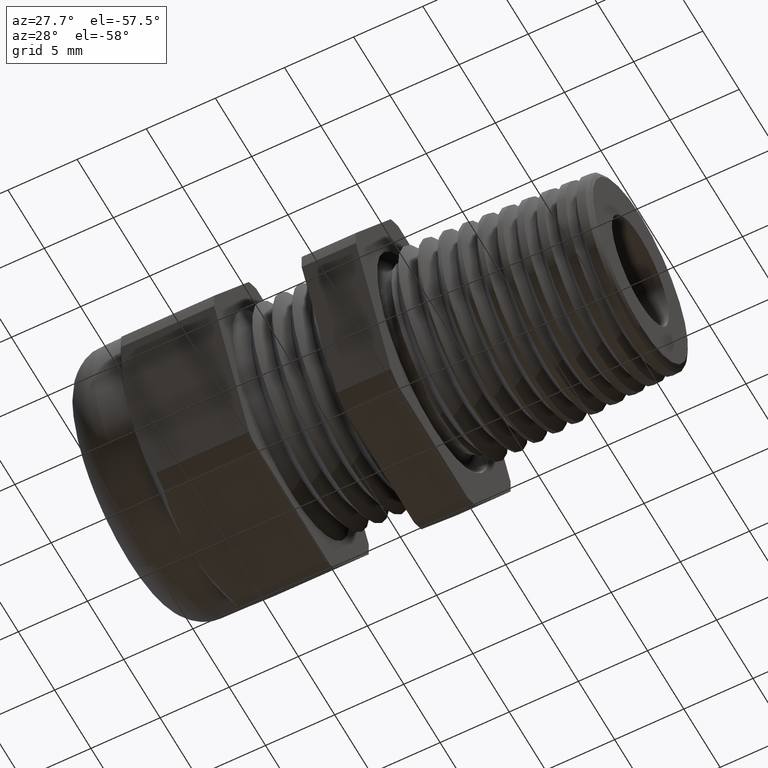
[diagram: clean part render]
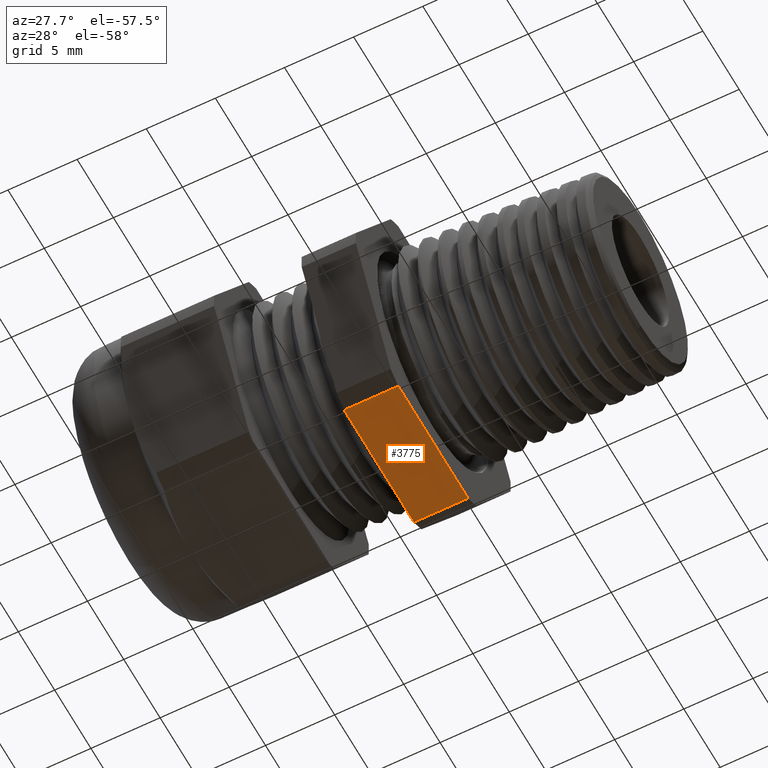
[diagram: same view with one face highlighted and labeled with its STEP entity id]
A machine part, auxiliary view. The second image highlights one B-rep face of the part: STEP entity #3775.
In plain terms, the highlighted planar face has unit normal (0, 0, -1).
Its self-contained STEP definition (entity closure, byte-faithful):
#243 = VERTEX_POINT ( 'NONE', #2354 ) ;
#246 = VERTEX_POINT ( 'NONE', #2405 ) ;
#248 = EDGE_CURVE ( 'NONE', #246, #243, #2404, .T. ) ;
#608 = EDGE_CURVE ( 'NONE', #633, #246, #3116, .T. ) ;
#633 = VERTEX_POINT ( 'NONE', #3076 ) ;
#643 = EDGE_CURVE ( 'NONE', #644, #243, #3170, .T. ) ;
#644 = VERTEX_POINT ( 'NONE', #3166 ) ;
#1219 = DIRECTION ( 'NONE',  ( -1.000000000000000000, 0.0000000000000000000, -0.0000000000000000000 ) ) ;
#1220 = DIRECTION ( 'NONE',  ( 0.0000000000000000000, 0.0000000000000000000, -1.000000000000000000 ) ) ;
#1221 = CARTESIAN_POINT ( 'NONE',  ( -1.893568786317334100, -0.1891428031937775500, -0.3749999999999999400 ) ) ;
#1222 = AXIS2_PLACEMENT_3D ( 'NONE', #1221, #1220, #1219 ) ;
#1223 = PLANE ( 'NONE',  #1222 ) ;
#1224 = FACE_OUTER_BOUND ( 'NONE', #3792, .T. ) ;
#1502 = DIRECTION ( 'NONE',  ( -0.0000000000000000000, 1.000000000000000000, 0.0000000000000000000 ) ) ;
#1503 = VECTOR ( 'NONE', #1502, 39.37007874015748100 ) ;
#1504 = CARTESIAN_POINT ( 'NONE',  ( -0.1542288557213930500, 0.3180000000000000000, -0.3749999999999999400 ) ) ;
#1505 = LINE ( 'NONE', #1504, #1503 ) ;
#2354 = CARTESIAN_POINT ( 'NONE',  ( 0.0000000000000000000, 0.1891428031937775500, -0.3749999999999999400 ) ) ;
#2401 = DIRECTION ( 'NONE',  ( 0.0000000000000000000, 1.000000000000000000, 0.0000000000000000000 ) ) ;
#2402 = VECTOR ( 'NONE', #2401, 39.37007874015748100 ) ;
#2403 = CARTESIAN_POINT ( 'NONE',  ( 0.0000000000000000000, -0.1891428031937775500, -0.3749999999999999400 ) ) ;
#2404 = LINE ( 'NONE', #2403, #2402 ) ;
#2405 = CARTESIAN_POINT ( 'NONE',  ( 0.0000000000000000000, -0.1891428031937776000, -0.3749999999999998900 ) ) ;
#3076 = CARTESIAN_POINT ( 'NONE',  ( -0.1542288557213930500, -0.1891428031937775500, -0.3749999999999999400 ) ) ;
#3113 = DIRECTION ( 'NONE',  ( 1.000000000000000000, -0.0000000000000000000, -0.0000000000000000000 ) ) ;
#3114 = VECTOR ( 'NONE', #3113, 39.37007874015748100 ) ;
#3115 = CARTESIAN_POINT ( 'NONE',  ( -1.893568786317334100, -0.1891428031937776000, -0.3749999999999998900 ) ) ;
#3116 = LINE ( 'NONE', #3115, #3114 ) ;
#3166 = CARTESIAN_POINT ( 'NONE',  ( -0.1542288557213930500, 0.1891428031937775500, -0.3749999999999999400 ) ) ;
#3167 = DIRECTION ( 'NONE',  ( 1.000000000000000000, -0.0000000000000000000, -0.0000000000000000000 ) ) ;
#3168 = VECTOR ( 'NONE', #3167, 39.37007874015748100 ) ;
#3169 = CARTESIAN_POINT ( 'NONE',  ( -1.893568786317334100, 0.1891428031937775500, -0.3749999999999999400 ) ) ;
#3170 = LINE ( 'NONE', #3169, #3168 ) ;
#3775 = ADVANCED_FACE ( 'NONE', ( #1224 ), #1223, .T. ) ;
#3777 = ORIENTED_EDGE ( 'NONE', *, *, #643, .T. ) ;
#3789 = ORIENTED_EDGE ( 'NONE', *, *, #608, .F. ) ;
#3791 = ORIENTED_EDGE ( 'NONE', *, *, #248, .F. ) ;
#3792 = EDGE_LOOP ( 'NONE', ( #3841, #3777, #3791, #3789 ) ) ;
#3841 = ORIENTED_EDGE ( 'NONE', *, *, #3960, .T. ) ;
#3960 = EDGE_CURVE ( 'NONE', #633, #644, #1505, .T. ) ;